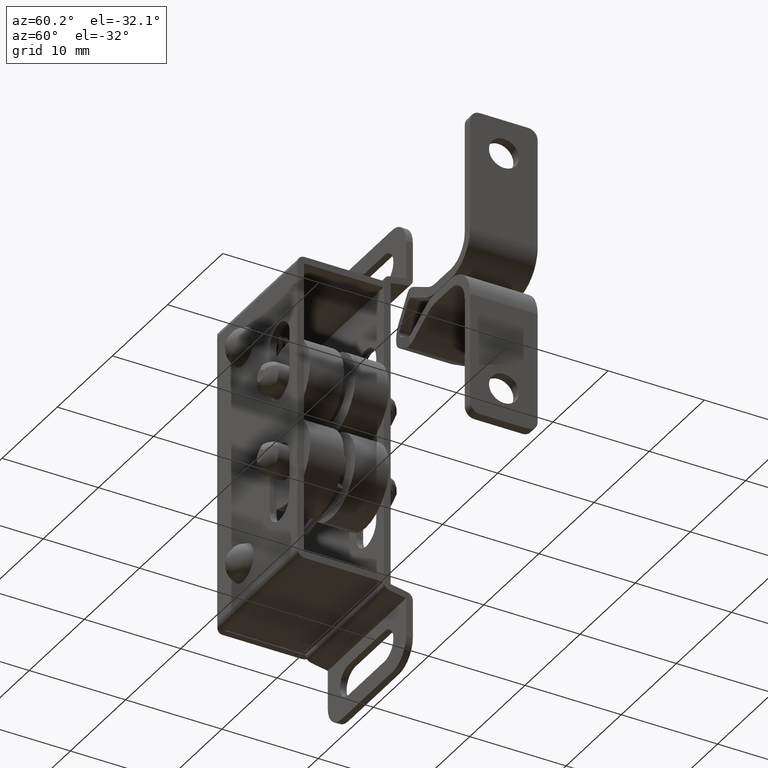
[diagram: clean part render]
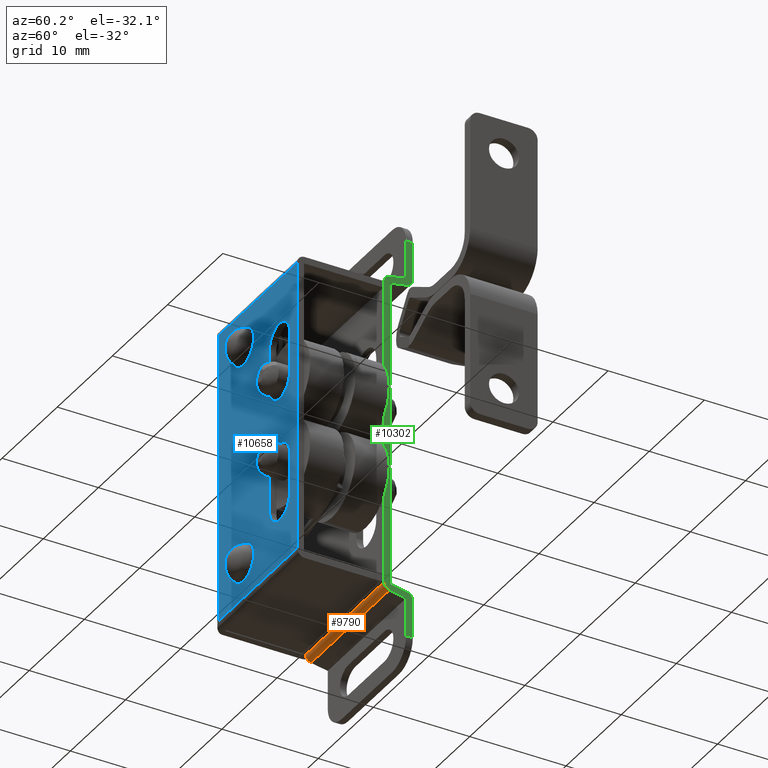
[diagram: same view with three faces highlighted in distinct colors, each labeled with its STEP entity id]
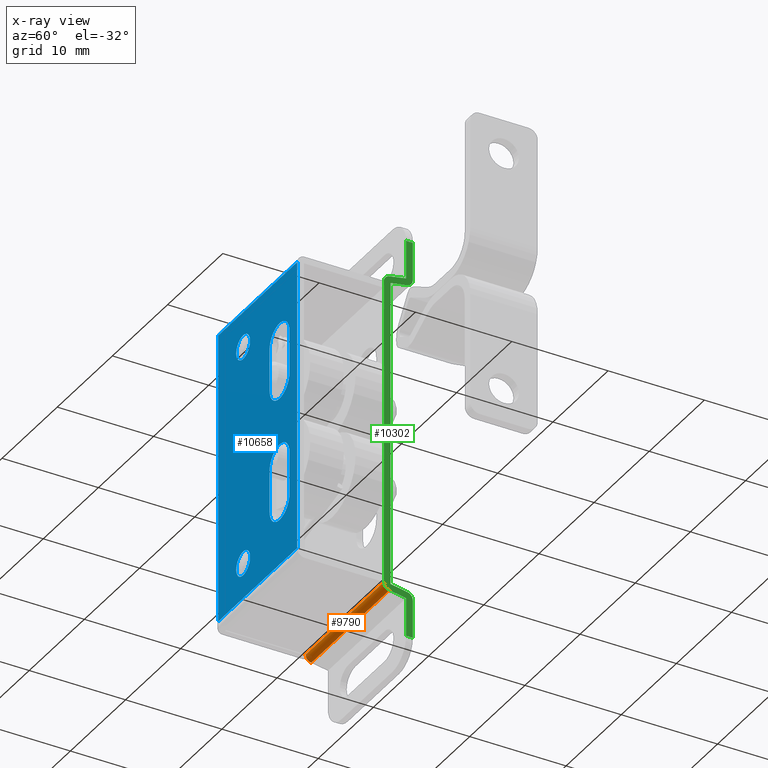
[diagram: x-ray of the same camera — body ghosted, the three highlighted faces saturated]
A machine part, auxiliary view with three faces highlighted in distinct colors.
The next image is the same camera in x-ray (body ghosted, the three faces saturated) — at least one of them is partly hidden behind the body in this view.
Their STEP definitions:

[orange] entity #9790 — the highlighted face is a freeform B-spline surface patch.
#9735=CARTESIAN_POINT('',(-7.405001000000000,-2.403464834763882,-36.692309593846844));
#9736=CARTESIAN_POINT('',(7.513874000000000,-2.403464834763882,-36.692309593846844));
#9737=CARTESIAN_POINT('',(-7.405001000000001,-3.039635583788048,-36.597234885226761));
#9738=CARTESIAN_POINT('',(7.513874000000001,-3.039635583788048,-36.597234885226761));
#9739=CARTESIAN_POINT('',(-7.405001000000000,-2.998572154969899,-35.955311044769921));
#9740=CARTESIAN_POINT('',(7.513874000000000,-2.998572154969899,-35.955311044769921));
#9748=(BOUNDED_SURFACE()B_SPLINE_SURFACE(1,2,((#9735,#9737,#9739),(#9736,#9738,#9740)),.UNSPECIFIED.,.F.,.F.,.U.)B_SPLINE_SURFACE_WITH_KNOTS((2,2),(3,3),(0.0,14.918875000000000),(0.0,0.989286562826298),.UNSPECIFIED.)GEOMETRIC_REPRESENTATION_ITEM()RATIONAL_B_SPLINE_SURFACE(((1.0,0.734231826858821,0.994305418748565),(1.0,0.734231826858821,0.994305418748565)))REPRESENTATION_ITEM('')SURFACE());
#9749=CARTESIAN_POINT('',(-7.050001000000000,-2.424283268661295,-36.688876786562901));
#9750=VERTEX_POINT('',#9749);
#9751=CARTESIAN_POINT('',(-7.049991500000099,-3.0,-36.0));
#9752=VERTEX_POINT('',#9751);
#9753=CARTESIAN_POINT('',(-7.050001000000000,-2.424283268661295,-36.688876786562901));
#9754=CARTESIAN_POINT('',(-7.050000340860760,-2.504223178892334,-36.674505441574730));
#9755=CARTESIAN_POINT('',(-7.049998969733455,-2.644448112540385,-36.622827654888532));
#9756=CARTESIAN_POINT('',(-7.049996527158683,-2.829637589670659,-36.476768495886873));
#9757=CARTESIAN_POINT('',(-7.049993923294700,-2.964741356686654,-36.268986681048567));
#9758=CARTESIAN_POINT('',(-7.049992241427153,-3.000078302353715,-36.091379747095097));
#9759=CARTESIAN_POINT('',(-7.049991500000099,-3.0,-36.0));
#9760=B_SPLINE_CURVE_WITH_KNOTS('',3,(#9753,#9754,#9755,#9756,#9757,#9758,#9759),.UNSPECIFIED.,.F.,.U.,(4,1,1,1,4),(0.000000073786578,0.243657757043663,0.441630109097496,0.700513576719176,0.974629196613938),.UNSPECIFIED.);
#9761=EDGE_CURVE('',#9750,#9752,#9760,.T.);
#9762=ORIENTED_EDGE('',*,*,#9761,.F.);
#9763=CARTESIAN_POINT('',(7.149998999999999,-2.424283268661295,-36.688876786562901));
#9764=VERTEX_POINT('',#9763);
#9765=CARTESIAN_POINT('',(7.149998999999999,-2.424283268661295,-36.688876786562901));
#9766=CARTESIAN_POINT('',(-7.050001000000000,-2.424283268661295,-36.688876786562901));
#9767=QUASI_UNIFORM_CURVE('',1,(#9765,#9766),.UNSPECIFIED.,.F.,.U.);
#9768=EDGE_CURVE('',#9764,#9750,#9767,.T.);
#9769=ORIENTED_EDGE('',*,*,#9768,.F.);
#9770=CARTESIAN_POINT('',(7.149998999999999,-3.0,-35.999998227504150));
#9771=VERTEX_POINT('',#9770);
#9772=CARTESIAN_POINT('',(7.149998999999999,-3.0,-35.999998227504150));
#9773=CARTESIAN_POINT('',(7.149998999999993,-3.000036089385314,-36.071068140282151));
#9774=CARTESIAN_POINT('',(7.149999000000005,-2.982054699415675,-36.187792565839700));
#9775=CARTESIAN_POINT('',(7.149998999999991,-2.906167813083536,-36.366149521409007));
#9776=CARTESIAN_POINT('',(7.149999000000016,-2.792119839612961,-36.512034159089247));
#9777=CARTESIAN_POINT('',(7.149998999999979,-2.620481677597034,-36.632876007510767));
#9778=CARTESIAN_POINT('',(7.149999000000014,-2.494229220205988,-36.676291240018493));
#9779=CARTESIAN_POINT('',(7.149998999999999,-2.424283268661295,-36.688876786562901));
#9780=B_SPLINE_CURVE_WITH_KNOTS('',3,(#9772,#9773,#9774,#9775,#9776,#9777,#9778,#9779),.UNSPECIFIED.,.F.,.U.,(4,1,1,1,1,4),(0.000000073784483,0.213200501175142,0.350258680267044,0.578686153869700,0.761431651671581,0.974630969167074),.UNSPECIFIED.);
#9781=EDGE_CURVE('',#9771,#9764,#9780,.T.);
#9782=ORIENTED_EDGE('',*,*,#9781,.F.);
#9783=CARTESIAN_POINT('',(-7.049991500000099,-3.0,-36.0));
#9784=CARTESIAN_POINT('',(7.149998999999999,-3.0,-35.999998227504150));
#9785=QUASI_UNIFORM_CURVE('',1,(#9783,#9784),.UNSPECIFIED.,.F.,.U.);
#9786=EDGE_CURVE('',#9752,#9771,#9785,.T.);
#9787=ORIENTED_EDGE('',*,*,#9786,.F.);
#9788=EDGE_LOOP('',(#9762,#9769,#9782,#9787));
#9789=FACE_OUTER_BOUND('',#9788,.T.);
#9790=ADVANCED_FACE('',(#9789),#9748,.T.);

[blue] entity #10658 — the highlighted face is a freeform B-spline surface patch.
#7141=CARTESIAN_POINT('',(-1.773863600810570,-12.0,-7.608437051074770));
#7142=VERTEX_POINT('',#7141);
#7148=CARTESIAN_POINT('',(-2.650000829116801,-12.0,-7.250000000000274));
#7149=VERTEX_POINT('',#7148);
#7150=CARTESIAN_POINT('',(-1.773863600810570,-12.0,-7.608437051074770));
#7151=CARTESIAN_POINT('',(-1.831563578122420,-12.000000000000011,-7.551727281615605));
#7152=CARTESIAN_POINT('',(-1.981719364579924,-12.0,-7.430386760151462));
#7153=CARTESIAN_POINT('',(-2.275854989366818,-11.999999999999980,-7.288645211865124));
#7154=CARTESIAN_POINT('',(-2.518523476847275,-12.000000000000060,-7.249929287111401));
#7155=CARTESIAN_POINT('',(-2.650000829116801,-12.0,-7.250000000000274));
#7156=B_SPLINE_CURVE_WITH_KNOTS('',3,(#7150,#7151,#7152,#7153,#7154,#7155),.UNSPECIFIED.,.F.,.U.,(4,1,1,4),(0.000000012919763,0.242715989299494,0.576446543011691,0.970863918501296),.UNSPECIFIED.);
#7157=EDGE_CURVE('',#7142,#7149,#7156,.T.);
#7159=CARTESIAN_POINT('',(-3.900000000000000,-12.0,-8.500000000000000));
#7160=VERTEX_POINT('',#7159);
#7161=CARTESIAN_POINT('',(-2.650000829116801,-12.0,-7.250000000000274));
#7162=CARTESIAN_POINT('',(-2.782956760995053,-12.000000000000011,-7.249920406636777));
#7163=CARTESIAN_POINT('',(-2.997655835389203,-12.0,-7.284608945450910));
#7164=CARTESIAN_POINT('',(-3.317098588564174,-12.000000000000011,-7.426165828220094));
#7165=CARTESIAN_POINT('',(-3.551597124198675,-11.999999999999989,-7.613813376744854));
#7166=CARTESIAN_POINT('',(-3.729063029323265,-12.000000000000011,-7.853237317685921));
#7167=CARTESIAN_POINT('',(-3.860901946381366,-12.0,-8.131904519166778));
#7168=CARTESIAN_POINT('',(-3.900103445103268,-11.999999999999989,-8.356812668725603));
#7169=CARTESIAN_POINT('',(-3.900000000000000,-12.0,-8.500000000000000));
#7170=B_SPLINE_CURVE_WITH_KNOTS('',3,(#7161,#7162,#7163,#7164,#7165,#7166,#7167,#7168,#7169),.UNSPECIFIED.,.F.,.U.,(4,1,1,1,1,1,4),(0.000000019039409,0.398841272212788,0.644292762527722,1.043131384817486,1.288570022076962,1.534021483307610,1.963544213102634),.UNSPECIFIED.);
#7171=EDGE_CURVE('',#7149,#7160,#7170,.T.);
#7173=CARTESIAN_POINT('',(-2.649999170883198,-12.0,-9.749999999999725));
#7174=VERTEX_POINT('',#7173);
#7175=CARTESIAN_POINT('',(-3.900000000000000,-12.0,-8.500000000000000));
#7176=CARTESIAN_POINT('',(-3.900079475116912,-11.999999999999989,-8.632956033226774));
#7177=CARTESIAN_POINT('',(-3.865395309677990,-11.999999999999989,-8.847658530415277));
#7178=CARTESIAN_POINT('',(-3.744610641691479,-12.000000000000011,-9.120087023848615));
#7179=CARTESIAN_POINT('',(-3.573076406317258,-12.000000000000020,-9.363792438855775));
#7180=CARTESIAN_POINT('',(-3.327394652861770,-11.999999999999940,-9.570478900525908));
#7181=CARTESIAN_POINT('',(-2.997678178117727,-12.000000000000091,-9.716599828960154));
#7182=CARTESIAN_POINT('',(-2.772719483500235,-11.999999999999959,-9.750049805187210));
#7183=CARTESIAN_POINT('',(-2.649999170883198,-12.0,-9.749999999999725));
#7184=B_SPLINE_CURVE_WITH_KNOTS('',3,(#7175,#7176,#7177,#7178,#7179,#7180,#7181,#7182,#7183),.UNSPECIFIED.,.F.,.U.,(4,1,1,1,1,1,4),(0.000000017901356,0.398841461105192,0.644293068156780,0.889732975771184,1.288570635059530,1.595385085354591,1.963545147733842),.UNSPECIFIED.);
#7185=EDGE_CURVE('',#7160,#7174,#7184,.T.);
#7187=CARTESIAN_POINT('',(-1.758436757976094,-12.0,-9.376136692297987));
#7188=VERTEX_POINT('',#7187);
#7189=CARTESIAN_POINT('',(-2.649999170883198,-12.0,-9.749999999999725));
#7190=CARTESIAN_POINT('',(-2.515564177310376,-11.999999999999989,-9.750084235080742));
#7191=CARTESIAN_POINT('',(-2.298480894296154,-12.000000000000030,-9.714610781084017));
#7192=CARTESIAN_POINT('',(-1.995110890310343,-11.999999999999950,-9.578449799878005));
#7193=CARTESIAN_POINT('',(-1.838136441372481,-12.000000000000060,-9.457290230359902));
#7194=CARTESIAN_POINT('',(-1.758436757976094,-12.0,-9.376136692297987));
#7195=B_SPLINE_CURVE_WITH_KNOTS('',3,(#7189,#7190,#7191,#7192,#7193,#7194),.UNSPECIFIED.,.F.,.U.,(4,1,1,4),(7.947974E-009,0.403276808290107,0.651446641998787,0.992680777873373),.UNSPECIFIED.);
#7196=EDGE_CURVE('',#7174,#7188,#7195,.T.);
#7282=CARTESIAN_POINT('',(-1.400000000000000,-12.0,-8.500000000000000));
#7283=VERTEX_POINT('',#7282);
#7284=CARTESIAN_POINT('',(-1.758436757976094,-12.0,-9.376136692297987));
#7285=CARTESIAN_POINT('',(-1.680437693936262,-12.000000000000011,-9.296815599915121));
#7286=CARTESIAN_POINT('',(-1.564223330445895,-11.999999999999989,-9.141654699312651));
#7287=CARTESIAN_POINT('',(-1.433828788758458,-12.000000000000030,-8.843799162698323));
#7288=CARTESIAN_POINT('',(-1.399929795402831,-11.999999999999959,-8.631479080816073));
#7289=CARTESIAN_POINT('',(-1.400000000000000,-12.0,-8.500000000000000));
#7290=B_SPLINE_CURVE_WITH_KNOTS('',3,(#7284,#7285,#7286,#7287,#7288,#7289),.UNSPECIFIED.,.F.,.U.,(4,1,1,4),(0.000000012900161,0.333737661069604,0.576446148419718,0.970863253915326),.UNSPECIFIED.);
#7291=EDGE_CURVE('',#7188,#7283,#7290,.T.);
#7293=CARTESIAN_POINT('',(-1.400000000000000,-12.0,-8.500000000000000));
#7294=CARTESIAN_POINT('',(-1.399848335679102,-12.000000000000020,-8.344868977520390));
#7295=CARTESIAN_POINT('',(-1.440952269577499,-11.999999999999980,-8.127839537742414));
#7296=CARTESIAN_POINT('',(-1.584318256083940,-12.000000000000030,-7.828591631055107));
#7297=CARTESIAN_POINT('',(-1.692706108071324,-11.999999999999970,-7.688135846835227));
#7298=CARTESIAN_POINT('',(-1.773863600810570,-12.0,-7.608437051074770));
#7299=B_SPLINE_CURVE_WITH_KNOTS('',3,(#7293,#7294,#7295,#7296,#7297,#7298),.UNSPECIFIED.,.F.,.U.,(4,1,1,4),(7.927597E-009,0.465319611016237,0.651447080523188,0.992681446093854),.UNSPECIFIED.);
#7300=EDGE_CURVE('',#7283,#7142,#7299,.T.);
#7541=CARTESIAN_POINT('',(-1.773863600810570,-12.0,-30.608437051074770));
#7542=VERTEX_POINT('',#7541);
#7548=CARTESIAN_POINT('',(-2.650000829116801,-12.0,-30.250000000000270));
#7549=VERTEX_POINT('',#7548);
#7550=CARTESIAN_POINT('',(-1.773863600810570,-12.0,-30.608437051074770));
#7551=CARTESIAN_POINT('',(-1.853190176863073,-12.000000000000011,-30.530443598388459));
#7552=CARTESIAN_POINT('',(-2.024666890963750,-11.999999999999980,-30.401971368206521));
#7553=CARTESIAN_POINT('',(-2.326403444215437,-12.000000000000011,-30.278534020879668));
#7554=CARTESIAN_POINT('',(-2.538754062856949,-12.000000000000011,-30.249966694718509));
#7555=CARTESIAN_POINT('',(-2.650000829116801,-12.0,-30.250000000000270));
#7556=B_SPLINE_CURVE_WITH_KNOTS('',3,(#7550,#7551,#7552,#7553,#7554,#7555),.UNSPECIFIED.,.F.,.U.,(4,1,1,4),(0.000000012919711,0.333737889520006,0.637126041879073,0.970863918501298),.UNSPECIFIED.);
#7557=EDGE_CURVE('',#7542,#7549,#7556,.T.);
#7559=CARTESIAN_POINT('',(-3.900000000000000,-12.0,-31.500000000000000));
#7560=VERTEX_POINT('',#7559);
#7561=CARTESIAN_POINT('',(-2.650000829116801,-12.0,-30.250000000000270));
#7562=CARTESIAN_POINT('',(-2.782956445971239,-12.0,-30.249920333265148));
#7563=CARTESIAN_POINT('',(-2.997656576701563,-12.000000000000011,-30.284609270468419));
#7564=CARTESIAN_POINT('',(-3.317097251441971,-11.999999999999989,-30.426165339993069));
#7565=CARTESIAN_POINT('',(-3.551598922129692,-12.000000000000011,-30.613814017159491));
#7566=CARTESIAN_POINT('',(-3.729061539293295,-12.0,-30.853236472858899));
#7567=CARTESIAN_POINT('',(-3.860903424714570,-11.999999999999989,-31.131905651782549));
#7568=CARTESIAN_POINT('',(-3.900102176303965,-12.0,-31.356812134788878));
#7569=CARTESIAN_POINT('',(-3.900000000000000,-12.0,-31.500000000000000));
#7570=B_SPLINE_CURVE_WITH_KNOTS('',3,(#7561,#7562,#7563,#7564,#7565,#7566,#7567,#7568,#7569),.UNSPECIFIED.,.F.,.U.,(4,1,1,1,1,1,4),(0.000000019040471,0.398841272213467,0.644292762528190,1.043131384817739,1.288570022077028,1.534021483307579,1.963544213102633),.UNSPECIFIED.);
#7571=EDGE_CURVE('',#7549,#7560,#7570,.T.);
#7573=CARTESIAN_POINT('',(-2.649999170883199,-12.0,-32.749999999999723));
#7574=VERTEX_POINT('',#7573);
#7575=CARTESIAN_POINT('',(-3.900000000000000,-12.0,-31.500000000000000));
#7576=CARTESIAN_POINT('',(-3.900035937731726,-12.000000000000011,-31.612494239372221));
#7577=CARTESIAN_POINT('',(-3.876366862560398,-12.0,-31.786323443217579));
#7578=CARTESIAN_POINT('',(-3.789992571957913,-12.000000000000011,-32.027697310270732));
#7579=CARTESIAN_POINT('',(-3.673511331323448,-11.999999999999959,-32.233347929244950));
#7580=CARTESIAN_POINT('',(-3.503115407127429,-12.000000000000060,-32.426036230344373));
#7581=CARTESIAN_POINT('',(-3.263772996538962,-12.000000000000060,-32.603598495719098));
#7582=CARTESIAN_POINT('',(-2.977253036818928,-11.999999999999760,-32.722269312109653));
#7583=CARTESIAN_POINT('',(-2.752261673171784,-12.000000000000240,-32.750016789413628));
#7584=CARTESIAN_POINT('',(-2.649999170883199,-12.0,-32.749999999999723));
#7585=B_SPLINE_CURVE_WITH_KNOTS('',3,(#7575,#7576,#7577,#7578,#7579,#7580,#7581,#7582,#7583,#7584),.UNSPECIFIED.,.F.,.U.,(4,1,1,1,1,1,1,4),(0.000000017898332,0.337478418840310,0.521568113294600,0.767014379033047,1.043131879063607,1.288570635058830,1.656747095445904,1.963545147733884),.UNSPECIFIED.);
#7586=EDGE_CURVE('',#7560,#7574,#7585,.T.);
#7588=CARTESIAN_POINT('',(-1.758436757976094,-12.0,-32.376136692297990));
#7589=VERTEX_POINT('',#7588);
#7590=CARTESIAN_POINT('',(-2.649999170883199,-12.0,-32.749999999999723));
#7591=CARTESIAN_POINT('',(-2.556935507897787,-11.999999999999989,-32.750017275627179));
#7592=CARTESIAN_POINT('',(-2.381165537788515,-12.000000000000011,-32.730272885182941));
#7593=CARTESIAN_POINT('',(-2.065776654340118,-12.000000000000020,-32.624884352557530));
#7594=CARTESIAN_POINT('',(-1.867061659797558,-11.999999999999970,-32.486887653921848));
#7595=CARTESIAN_POINT('',(-1.758436757976094,-12.0,-32.376136692297990));
#7596=B_SPLINE_CURVE_WITH_KNOTS('',3,(#7590,#7591,#7592,#7593,#7594,#7595),.UNSPECIFIED.,.F.,.U.,(4,1,1,4),(7.948064E-009,0.279191489992953,0.527361488023393,0.992680777873370),.UNSPECIFIED.);
#7597=EDGE_CURVE('',#7574,#7589,#7596,.T.);
#7681=CARTESIAN_POINT('',(-1.400000000000000,-12.0,-31.500000000000000));
#7682=VERTEX_POINT('',#7681);
#7683=CARTESIAN_POINT('',(-1.758436757976094,-12.0,-32.376136692297990));
#7684=CARTESIAN_POINT('',(-1.680436613146193,-12.0,-32.296815845534233));
#7685=CARTESIAN_POINT('',(-1.564223600254225,-11.999999999999989,-32.141654620066213));
#7686=CARTESIAN_POINT('',(-1.433835953978591,-12.000000000000020,-31.843798259415109));
#7687=CARTESIAN_POINT('',(-1.399920575356371,-11.999999999999980,-31.631480251673871));
#7688=CARTESIAN_POINT('',(-1.400000000000000,-12.0,-31.500000000000000));
#7689=B_SPLINE_CURVE_WITH_KNOTS('',3,(#7683,#7684,#7685,#7686,#7687,#7688),.UNSPECIFIED.,.F.,.U.,(4,1,1,4),(0.000000012900144,0.333737661069851,0.576446148419815,0.970863253915329),.UNSPECIFIED.);
#7690=EDGE_CURVE('',#7589,#7682,#7689,.T.);
#7692=CARTESIAN_POINT('',(-1.400000000000000,-12.0,-31.500000000000000));
#7693=CARTESIAN_POINT('',(-1.399850363912752,-11.999999999999989,-31.344870903633581));
#7694=CARTESIAN_POINT('',(-1.444860874987946,-12.000000000000020,-31.107162779990372));
#7695=CARTESIAN_POINT('',(-1.595944500380337,-11.999999999999980,-30.810935522078520));
#7696=CARTESIAN_POINT('',(-1.707473744850584,-12.000000000000011,-30.673653888099661));
#7697=CARTESIAN_POINT('',(-1.773863600810570,-12.0,-30.608437051074770));
#7698=B_SPLINE_CURVE_WITH_KNOTS('',3,(#7692,#7693,#7694,#7695,#7696,#7697),.UNSPECIFIED.,.F.,.U.,(4,1,1,4),(7.928524E-009,0.465319611016589,0.713489776106254,0.992681446093841),.UNSPECIFIED.);
#7699=EDGE_CURVE('',#7682,#7542,#7698,.T.);
#7742=CARTESIAN_POINT('',(-7.150001000000000,-12.0,-4.800000000000000));
#7743=VERTEX_POINT('',#7742);
#7773=CARTESIAN_POINT('',(7.149998999999999,-12.0,-4.800000000000000));
#7774=VERTEX_POINT('',#7773);
#7775=CARTESIAN_POINT('',(7.149998999999999,-12.0,-4.800000000000000));
#7776=CARTESIAN_POINT('',(-7.150001000000000,-12.0,-4.800000000000000));
#7777=QUASI_UNIFORM_CURVE('',1,(#7775,#7776),.UNSPECIFIED.,.F.,.U.);
#7778=EDGE_CURVE('',#7774,#7743,#7777,.T.);
#7837=CARTESIAN_POINT('',(7.149998999999999,-12.0,-35.200000000000003));
#7838=VERTEX_POINT('',#7837);
#7846=CARTESIAN_POINT('',(-7.150001000000000,-12.0,-35.200000000000003));
#7847=VERTEX_POINT('',#7846);
#7848=CARTESIAN_POINT('',(-7.150001000000000,-12.0,-35.200000000000003));
#7849=CARTESIAN_POINT('',(7.149998999999999,-12.0,-35.200000000000003));
#7850=QUASI_UNIFORM_CURVE('',1,(#7848,#7849),.UNSPECIFIED.,.F.,.U.);
#7851=EDGE_CURVE('',#7847,#7838,#7850,.T.);
#8183=CARTESIAN_POINT('',(5.749998000000000,-12.0,-15.754242637736750));
#8184=VERTEX_POINT('',#8183);
#8190=CARTESIAN_POINT('',(5.749998000000000,-12.0,-11.345756362263240));
#8191=VERTEX_POINT('',#8190);
#8192=CARTESIAN_POINT('',(5.749998000000000,-12.0,-15.754242637736750));
#8193=CARTESIAN_POINT('',(5.749998000000000,-12.0,-11.345756362263240));
#8194=QUASI_UNIFORM_CURVE('',1,(#8192,#8193),.UNSPECIFIED.,.F.,.U.);
#8195=EDGE_CURVE('',#8184,#8191,#8194,.T.);
#8255=CARTESIAN_POINT('',(3.947880959622001,-12.0,-9.550000250849127));
#8256=VERTEX_POINT('',#8255);
#8257=CARTESIAN_POINT('',(5.749998000000000,-12.0,-11.345756362263240));
#8258=CARTESIAN_POINT('',(5.749670244799378,-12.0,-11.139716590192350));
#8259=CARTESIAN_POINT('',(5.700321652183813,-12.000000000000030,-10.860348670414400));
#8260=CARTESIAN_POINT('',(5.548534692537960,-11.999999999999980,-10.508354432587700));
#8261=CARTESIAN_POINT('',(5.400868184932342,-12.000000000000011,-10.269740264615720));
#8262=CARTESIAN_POINT('',(5.155808609157690,-11.999999999999959,-9.993531456381749));
#8263=CARTESIAN_POINT('',(4.866637430004766,-12.000000000000080,-9.785255913605623));
#8264=CARTESIAN_POINT('',(4.448164799857879,-12.000000000000060,-9.600513491899832));
#8265=CARTESIAN_POINT('',(4.153921255269936,-11.999999999999901,-9.549608255637747));
#8266=CARTESIAN_POINT('',(3.947880959622001,-12.0,-9.550000250849127));
#8267=B_SPLINE_CURVE_WITH_KNOTS('',3,(#8257,#8258,#8259,#8260,#8261,#8262,#8263,#8264,#8265,#8266),.UNSPECIFIED.,.F.,.U.,(4,1,1,1,1,1,1,4),(0.000000059123574,0.618040184563632,0.838771877610776,1.147793396208711,1.456800323694249,1.942413259800364,2.207291084473840,2.825330488498266),.UNSPECIFIED.);
#8268=EDGE_CURVE('',#8191,#8256,#8267,.T.);
#8270=CARTESIAN_POINT('',(2.150003000000000,-12.0,-11.349998999999981));
#8271=VERTEX_POINT('',#8270);
#8272=CARTESIAN_POINT('',(3.947880959622001,-12.0,-9.550000250849127));
#8273=CARTESIAN_POINT('',(3.763930814674832,-12.000000000000020,-9.550132174778762));
#8274=CARTESIAN_POINT('',(3.484451785378094,-11.999999999999959,-9.593783530552487));
#8275=CARTESIAN_POINT('',(3.129095971949953,-12.000000000000050,-9.738838340484959));
#8276=CARTESIAN_POINT('',(2.871451612656343,-11.999999999999950,-9.897860810100896));
#8277=CARTESIAN_POINT('',(2.600497029693734,-12.000000000000060,-10.137705877527830));
#8278=CARTESIAN_POINT('',(2.403411416828224,-11.999999999999931,-10.407149473071740));
#8279=CARTESIAN_POINT('',(2.252247590946280,-12.000000000000050,-10.727081241496510));
#8280=CARTESIAN_POINT('',(2.169622714549909,-11.999999999999970,-11.018908999373579));
#8281=CARTESIAN_POINT('',(2.149997575960805,-12.000000000000011,-11.246995307971790));
#8282=CARTESIAN_POINT('',(2.150003000000000,-12.0,-11.349998999999981));
#8283=B_SPLINE_CURVE_WITH_KNOTS('',3,(#8272,#8273,#8274,#8275,#8276,#8277,#8278,#8279,#8280,#8281,#8282),.UNSPECIFIED.,.F.,.U.,(4,1,1,1,1,1,1,1,4),(0.000000059120850,0.551818016286363,0.838771450075751,1.147792811157846,1.456799581158528,1.920335616417419,2.141069945359729,2.516315479431486,2.825329048397229),.UNSPECIFIED.);
#8284=EDGE_CURVE('',#8256,#8271,#8283,.T.);
#8307=CARTESIAN_POINT('',(2.150003000000000,-12.000000000000460,-15.750000000000000));
#8308=VERTEX_POINT('',#8307);
#8309=CARTESIAN_POINT('',(2.150003000000000,-12.0,-11.349998999999981));
#8310=CARTESIAN_POINT('',(2.150003000000000,-12.000000000000460,-15.750000000000000));
#8311=QUASI_UNIFORM_CURVE('',1,(#8309,#8310),.UNSPECIFIED.,.F.,.U.);
#8312=EDGE_CURVE('',#8271,#8308,#8311,.T.);
#8368=CARTESIAN_POINT('',(3.947882399694977,-12.0,-17.549998750848001));
#8369=VERTEX_POINT('',#8368);
#8370=CARTESIAN_POINT('',(2.150003000000000,-12.000000000000460,-15.750000000000000));
#8371=CARTESIAN_POINT('',(2.149979829928829,-12.000000000000460,-15.882435784218130));
#8372=CARTESIAN_POINT('',(2.175296521670493,-12.000000000000369,-16.110507390203001));
#8373=CARTESIAN_POINT('',(2.288851285666884,-12.000000000000391,-16.477147819663639));
#8374=CARTESIAN_POINT('',(2.458725162482789,-12.000000000000330,-16.781630668852891));
#8375=CARTESIAN_POINT('',(2.706219769570180,-12.000000000000171,-17.065270895936550));
#8376=CARTESIAN_POINT('',(3.007824586655671,-12.000000000000171,-17.304047447076339));
#8377=CARTESIAN_POINT('',(3.432943375804575,-12.000000000000099,-17.499189821119931));
#8378=CARTESIAN_POINT('',(3.771292832589077,-12.000000000000060,-17.549862387461310));
#8379=CARTESIAN_POINT('',(3.947882399694977,-12.0,-17.549998750848001));
#8380=B_SPLINE_CURVE_WITH_KNOTS('',3,(#8370,#8371,#8372,#8373,#8374,#8375,#8376,#8377,#8378,#8379),.UNSPECIFIED.,.F.,.U.,(4,1,1,1,1,1,1,4),(0.000000059121146,0.397304091772344,0.684259417856050,1.147793396208071,1.434720139257297,1.809968446232705,2.295582501647633,2.825330488498274),.UNSPECIFIED.);
#8381=EDGE_CURVE('',#8308,#8369,#8380,.T.);
#8383=CARTESIAN_POINT('',(3.947882399694977,-12.0,-17.549998750848001));
#8384=CARTESIAN_POINT('',(4.087678791226854,-11.999999999999980,-17.550195211588090));
#8385=CARTESIAN_POINT('',(4.352570024106401,-11.999999999999950,-17.519452501682458));
#8386=CARTESIAN_POINT('',(4.764651997440803,-11.999999999999959,-17.375585002767039));
#8387=CARTESIAN_POINT('',(5.112425084328804,-11.999999999999810,-17.147083416606161));
#8388=CARTESIAN_POINT('',(5.369498776796768,-12.0,-16.871253485259238));
#8389=CARTESIAN_POINT('',(5.555125583797985,-11.999999999999851,-16.587151253097652));
#8390=CARTESIAN_POINT('',(5.706026287418883,-12.0,-16.224999722865199));
#8391=CARTESIAN_POINT('',(5.749664228497259,-11.999999999999970,-15.923470201175610));
#8392=CARTESIAN_POINT('',(5.749998000000000,-12.0,-15.754242637736750));
#8393=B_SPLINE_CURVE_WITH_KNOTS('',3,(#8383,#8384,#8385,#8386,#8387,#8388,#8389,#8390,#8391,#8392),.UNSPECIFIED.,.F.,.U.,(4,1,1,1,1,1,1,4),(0.000000059121515,0.419383340002331,0.794625917825353,1.302302666897636,1.655453298301464,1.920335616417509,2.317657984879047,2.825329048397213),.UNSPECIFIED.);
#8394=EDGE_CURVE('',#8369,#8184,#8393,.T.);
#8638=CARTESIAN_POINT('',(5.749998000000000,-12.0,-28.654244637736749));
#8639=VERTEX_POINT('',#8638);
#8645=CARTESIAN_POINT('',(5.749998000000000,-12.000000000000460,-24.245757362263252));
#8646=VERTEX_POINT('',#8645);
#8647=CARTESIAN_POINT('',(5.749998000000000,-12.000000000000460,-24.245757362263252));
#8648=CARTESIAN_POINT('',(5.749998000000000,-12.0,-28.654244637736749));
#8649=QUASI_UNIFORM_CURVE('',1,(#8647,#8648),.UNSPECIFIED.,.F.,.U.);
#8650=EDGE_CURVE('',#8646,#8639,#8649,.T.);
#8715=CARTESIAN_POINT('',(2.150003000000000,-12.0,-28.650002000000001));
#8716=VERTEX_POINT('',#8715);
#8722=CARTESIAN_POINT('',(3.947882399694978,-12.0,-30.450000750848002));
#8723=VERTEX_POINT('',#8722);
#8724=CARTESIAN_POINT('',(2.150003000000000,-12.0,-28.650002000000001));
#8725=CARTESIAN_POINT('',(2.149996907295000,-12.0,-28.767719457713369));
#8726=CARTESIAN_POINT('',(2.177493593224528,-12.000000000000011,-29.047314477725202));
#8727=CARTESIAN_POINT('',(2.329489655984524,-12.0,-29.489700759612639));
#8728=CARTESIAN_POINT('',(2.597399158312987,-12.000000000000020,-29.865538453106989));
#8729=CARTESIAN_POINT('',(2.912257512386368,-12.000000000000020,-30.134019370147250));
#8730=CARTESIAN_POINT('',(3.182292378389537,-11.999999999999931,-30.287283670299750));
#8731=CARTESIAN_POINT('',(3.528576418746424,-12.000000000000050,-30.413958490195220));
#8732=CARTESIAN_POINT('',(3.778650501305384,-11.999999999999989,-30.449865986343220));
#8733=CARTESIAN_POINT('',(3.947882399694978,-12.0,-30.450000750848002));
#8734=B_SPLINE_CURVE_WITH_KNOTS('',3,(#8724,#8725,#8726,#8727,#8728,#8729,#8730,#8731,#8732,#8733),.UNSPECIFIED.,.F.,.U.,(4,1,1,1,1,1,1,4),(0.000000059124686,0.353159742156555,0.838771877610912,1.390610219639224,1.721678999414227,2.074850996598717,2.317659166220601,2.825330488498271),.UNSPECIFIED.);
#8735=EDGE_CURVE('',#8716,#8723,#8734,.T.);
#8737=CARTESIAN_POINT('',(3.947882399694978,-12.0,-30.450000750848002));
#8738=CARTESIAN_POINT('',(4.117114640605317,-12.000000000000020,-30.450264659082201));
#8739=CARTESIAN_POINT('',(4.367271754194368,-11.999999999999980,-30.414946442186761));
#8740=CARTESIAN_POINT('',(4.713850124868943,-12.000000000000030,-30.289083124626838));
#8741=CARTESIAN_POINT('',(5.022917346921485,-11.999999999999980,-30.114692036294532));
#8742=CARTESIAN_POINT('',(5.291174373183319,-11.999999999999940,-29.869381766186379));
#8743=CARTESIAN_POINT('',(5.507806076187875,-12.000000000000080,-29.570811681602098));
#8744=CARTESIAN_POINT('',(5.691238587051195,-11.999999999999931,-29.191127725739818));
#8745=CARTESIAN_POINT('',(5.749666349195303,-12.000000000000020,-28.860278862029151));
#8746=CARTESIAN_POINT('',(5.749998000000000,-12.0,-28.654244637736749));
#8747=B_SPLINE_CURVE_WITH_KNOTS('',3,(#8737,#8738,#8739,#8740,#8741,#8742,#8743,#8744,#8745,#8746),.UNSPECIFIED.,.F.,.U.,(4,1,1,1,1,1,1,4),(0.000000059123265,0.507672252911521,0.750479392508444,1.103651916894115,1.567168273454924,1.832047286447955,2.207289959392399,2.825329048397207),.UNSPECIFIED.);
#8748=EDGE_CURVE('',#8723,#8639,#8747,.T.);
#8761=CARTESIAN_POINT('',(2.149999000000000,-12.0,-24.250000000000000));
#8762=VERTEX_POINT('',#8761);
#8768=CARTESIAN_POINT('',(2.150003000000000,-12.0,-28.650002000000001));
#8769=CARTESIAN_POINT('',(2.149999000000000,-12.0,-24.250000000000000));
#8770=QUASI_UNIFORM_CURVE('',1,(#8768,#8769),.UNSPECIFIED.,.F.,.U.);
#8771=EDGE_CURVE('',#8716,#8762,#8770,.T.);
#8829=CARTESIAN_POINT('',(3.947878960793736,-12.000000000000229,-22.450001250847759));
#8830=VERTEX_POINT('',#8829);
#8831=CARTESIAN_POINT('',(5.749998000000000,-12.000000000000460,-24.245757362263252));
#8832=CARTESIAN_POINT('',(5.749673857022409,-12.000000000000499,-24.024994863567930));
#8833=CARTESIAN_POINT('',(5.689791758019511,-12.000000000000419,-23.708905388983460));
#8834=CARTESIAN_POINT('',(5.500326780586616,-12.000000000000490,-23.316782281967591));
#8835=CARTESIAN_POINT('',(5.283255078892189,-12.000000000000290,-23.017583596419989));
#8836=CARTESIAN_POINT('',(4.941925115785479,-12.000000000000391,-22.720433198587870));
#8837=CARTESIAN_POINT('',(4.477661889163438,-12.000000000000350,-22.501742614630221));
#8838=CARTESIAN_POINT('',(4.124466690667269,-12.000000000000069,-22.449722200692211));
#8839=CARTESIAN_POINT('',(3.947878960793736,-12.000000000000229,-22.450001250847759));
#8840=B_SPLINE_CURVE_WITH_KNOTS('',3,(#8831,#8832,#8833,#8834,#8835,#8836,#8837,#8838,#8839),.UNSPECIFIED.,.F.,.U.,(4,1,1,1,1,1,4),(0.000000059139142,0.662186376425372,0.949140314031284,1.302303858299537,1.765823272502082,2.295583431646043,2.825331633108400),.UNSPECIFIED.);
#8841=EDGE_CURVE('',#8646,#8830,#8840,.T.);
#8843=CARTESIAN_POINT('',(3.947878960793736,-12.000000000000229,-22.450001250847759));
#8844=CARTESIAN_POINT('',(3.727116604274442,-12.000000000000160,-22.450071331716519));
#8845=CARTESIAN_POINT('',(3.425662498027408,-12.000000000000250,-22.506798520031261));
#8846=CARTESIAN_POINT('',(3.044746068897427,-12.000000000000060,-22.684577114701550));
#8847=CARTESIAN_POINT('',(2.794922421632517,-12.000000000000160,-22.856222608825458));
#8848=CARTESIAN_POINT('',(2.575752325512120,-11.999999999999989,-23.075678755346011));
#8849=CARTESIAN_POINT('',(2.372719865447947,-12.000000000000069,-23.356769189150469));
#8850=CARTESIAN_POINT('',(2.199117978461666,-12.000000000000060,-23.742364296001060));
#8851=CARTESIAN_POINT('',(2.149925807272600,-12.0,-24.073409579469502));
#8852=CARTESIAN_POINT('',(2.149999000000000,-12.0,-24.250000000000000));
#8853=B_SPLINE_CURVE_WITH_KNOTS('',3,(#8843,#8844,#8845,#8846,#8847,#8848,#8849,#8850,#8851,#8852),.UNSPECIFIED.,.F.,.U.,(4,1,1,1,1,1,1,4),(0.000000059121967,0.662186038335349,0.904994224332550,1.258162111597033,1.567168907054025,1.832048027127230,2.295582259638616,2.825330190642392),.UNSPECIFIED.);
#8854=EDGE_CURVE('',#8830,#8762,#8853,.T.);
#9811=CARTESIAN_POINT('',(-7.150001000000000,-12.0,-4.800000000000000));
#9812=CARTESIAN_POINT('',(-7.150001000000000,-12.0,-35.200000000000003));
#9813=QUASI_UNIFORM_CURVE('',1,(#9811,#9812),.UNSPECIFIED.,.F.,.U.);
#9814=EDGE_CURVE('',#7743,#7847,#9813,.T.);
#10095=CARTESIAN_POINT('',(7.149998999999999,-12.0,-4.800000000000000));
#10096=CARTESIAN_POINT('',(7.149998999999999,-12.0,-35.200000000000003));
#10097=QUASI_UNIFORM_CURVE('',1,(#10095,#10096),.UNSPECIFIED.,.F.,.U.);
#10098=EDGE_CURVE('',#7774,#7838,#10097,.T.);
#10615=CARTESIAN_POINT('',(-7.864286106521996,-12.0,-36.718480797199263));
#10616=CARTESIAN_POINT('',(-7.864286106521996,-12.0,-3.281519202800755));
#10617=CARTESIAN_POINT('',(7.864284362225924,-12.0,-36.718480797199263));
#10618=CARTESIAN_POINT('',(7.864284362225924,-12.0,-3.281519202800755));
#10619=B_SPLINE_SURFACE_WITH_KNOTS('',1,1,((#10615,#10617),(#10616,#10618)),.UNSPECIFIED.,.F.,.F.,.U.,(2,2),(2,2),(0.0,33.436961594398497),(0.0,15.728570468747920),.UNSPECIFIED.);
#10620=ORIENTED_EDGE('',*,*,#9814,.T.);
#10621=ORIENTED_EDGE('',*,*,#7851,.T.);
#10622=ORIENTED_EDGE('',*,*,#10098,.F.);
#10623=ORIENTED_EDGE('',*,*,#7778,.T.);
#10624=EDGE_LOOP('',(#10620,#10621,#10622,#10623));
#10625=FACE_OUTER_BOUND('',#10624,.T.);
#10626=ORIENTED_EDGE('',*,*,#8195,.F.);
#10627=ORIENTED_EDGE('',*,*,#8394,.F.);
#10628=ORIENTED_EDGE('',*,*,#8381,.F.);
#10629=ORIENTED_EDGE('',*,*,#8312,.F.);
#10630=ORIENTED_EDGE('',*,*,#8284,.F.);
#10631=ORIENTED_EDGE('',*,*,#8268,.F.);
#10632=EDGE_LOOP('',(#10626,#10627,#10628,#10629,#10630,#10631));
#10633=FACE_BOUND('',#10632,.T.);
#10634=ORIENTED_EDGE('',*,*,#8650,.T.);
#10635=ORIENTED_EDGE('',*,*,#8748,.F.);
#10636=ORIENTED_EDGE('',*,*,#8735,.F.);
#10637=ORIENTED_EDGE('',*,*,#8771,.T.);
#10638=ORIENTED_EDGE('',*,*,#8854,.F.);
#10639=ORIENTED_EDGE('',*,*,#8841,.F.);
#10640=EDGE_LOOP('',(#10634,#10635,#10636,#10637,#10638,#10639));
#10641=FACE_BOUND('',#10640,.T.);
#10642=ORIENTED_EDGE('',*,*,#7571,.F.);
#10643=ORIENTED_EDGE('',*,*,#7557,.F.);
#10644=ORIENTED_EDGE('',*,*,#7699,.F.);
#10645=ORIENTED_EDGE('',*,*,#7690,.F.);
#10646=ORIENTED_EDGE('',*,*,#7597,.F.);
#10647=ORIENTED_EDGE('',*,*,#7586,.F.);
#10648=EDGE_LOOP('',(#10642,#10643,#10644,#10645,#10646,#10647));
#10649=FACE_BOUND('',#10648,.T.);
#10650=ORIENTED_EDGE('',*,*,#7171,.F.);
#10651=ORIENTED_EDGE('',*,*,#7157,.F.);
#10652=ORIENTED_EDGE('',*,*,#7300,.F.);
#10653=ORIENTED_EDGE('',*,*,#7291,.F.);
#10654=ORIENTED_EDGE('',*,*,#7196,.F.);
#10655=ORIENTED_EDGE('',*,*,#7185,.F.);
#10656=EDGE_LOOP('',(#10650,#10651,#10652,#10653,#10654,#10655));
#10657=FACE_BOUND('',#10656,.T.);
#10658=ADVANCED_FACE('',(#10625,#10633,#10641,#10649,#10657),#10619,.F.);

[green] entity #10302 — the highlighted face is a freeform B-spline surface patch.
#9332=CARTESIAN_POINT('',(7.149998999999999,0.0,-41.0));
#9333=VERTEX_POINT('',#9332);
#9348=CARTESIAN_POINT('',(7.149998999999999,-0.699997000000000,-41.0));
#9349=VERTEX_POINT('',#9348);
#9350=CARTESIAN_POINT('',(7.149998999999999,-0.699997000000000,-41.0));
#9351=CARTESIAN_POINT('',(7.149998999999999,0.0,-41.0));
#9352=QUASI_UNIFORM_CURVE('',1,(#9350,#9351),.UNSPECIFIED.,.F.,.U.);
#9353=EDGE_CURVE('',#9349,#9333,#9352,.T.);
#9457=CARTESIAN_POINT('',(7.149998999999999,-0.699997000000000,1.0));
#9458=VERTEX_POINT('',#9457);
#9475=CARTESIAN_POINT('',(7.149998999999999,0.0,1.0));
#9476=VERTEX_POINT('',#9475);
#9477=CARTESIAN_POINT('',(7.149998999999999,0.0,1.0));
#9478=CARTESIAN_POINT('',(7.149998999999999,-0.699997000000000,1.0));
#9479=QUASI_UNIFORM_CURVE('',1,(#9477,#9478),.UNSPECIFIED.,.F.,.U.);
#9480=EDGE_CURVE('',#9476,#9458,#9479,.T.);
#9595=CARTESIAN_POINT('',(7.149998999999999,-3.0,-4.000002772495815));
#9596=VERTEX_POINT('',#9595);
#9602=CARTESIAN_POINT('',(7.149998999999999,-2.424283268661290,-3.311124213437060));
#9603=VERTEX_POINT('',#9602);
#9604=CARTESIAN_POINT('',(7.149998999999999,-2.424283268661290,-3.311124213437060));
#9605=CARTESIAN_POINT('',(7.149998999999998,-2.514238787905956,-3.327248325779408));
#9606=CARTESIAN_POINT('',(7.149998999999999,-2.653804313399287,-3.382267581711301));
#9607=CARTESIAN_POINT('',(7.149999000000012,-2.835273276271992,-3.531894447318015));
#9608=CARTESIAN_POINT('',(7.149998999999930,-2.964731449490340,-3.731018304366823));
#9609=CARTESIAN_POINT('',(7.149999000000048,-3.000082050687314,-3.908621847297423));
#9610=CARTESIAN_POINT('',(7.149998999999999,-3.0,-4.000002772495815));
#9611=B_SPLINE_CURVE_WITH_KNOTS('',3,(#9604,#9605,#9606,#9607,#9608,#9609,#9610),.UNSPECIFIED.,.F.,.U.,(4,1,1,1,4),(0.000000073785087,0.274116896534763,0.441630912297400,0.700514850734721,0.974630969167079),.UNSPECIFIED.);
#9612=EDGE_CURVE('',#9603,#9596,#9611,.T.);
#9651=CARTESIAN_POINT('',(7.149998999999999,0.0,-3.000039114126250));
#9652=VERTEX_POINT('',#9651);
#9658=CARTESIAN_POINT('',(7.149998999999999,-0.575716801145150,-3.688917685779055));
#9659=VERTEX_POINT('',#9658);
#9660=CARTESIAN_POINT('',(7.149998999999999,-0.575716801145150,-3.688917685779055));
#9661=CARTESIAN_POINT('',(7.149998999999990,-0.505769282399903,-3.676334108753429));
#9662=CARTESIAN_POINT('',(7.149999000000020,-0.394088816915863,-3.637919271907310));
#9663=CARTESIAN_POINT('',(7.149998999999990,-0.253402475899071,-3.545534874968682));
#9664=CARTESIAN_POINT('',(7.149999000000003,-0.123629016809682,-3.415309352150752));
#9665=CARTESIAN_POINT('',(7.149999000000007,-0.024130966271795,-3.228473720767051));
#9666=CARTESIAN_POINT('',(7.149998999999993,0.000021976871484,-3.071102605822653));
#9667=CARTESIAN_POINT('',(7.149998999999999,0.0,-3.000039114126250));
#9668=B_SPLINE_CURVE_WITH_KNOTS('',3,(#9660,#9661,#9662,#9663,#9664,#9665,#9666,#9667),.UNSPECIFIED.,.F.,.U.,(4,1,1,1,1,4),(0.000000073785355,0.213200516693601,0.350258705761176,0.502530427383172,0.761431707091947,0.974631040104689),.UNSPECIFIED.);
#9669=EDGE_CURVE('',#9659,#9652,#9668,.T.);
#9707=CARTESIAN_POINT('',(7.149998999999999,-0.575716414221425,-36.311083384025352));
#9708=VERTEX_POINT('',#9707);
#9714=CARTESIAN_POINT('',(7.149998999999999,0.0,-36.999961885871649));
#9715=VERTEX_POINT('',#9714);
#9716=CARTESIAN_POINT('',(7.149998999999999,0.0,-36.999961885871649));
#9717=CARTESIAN_POINT('',(7.149998999999995,0.000063186107636,-36.918734757648309));
#9718=CARTESIAN_POINT('',(7.149998999999993,-0.024135071979454,-36.781720907872007));
#9719=CARTESIAN_POINT('',(7.149999000000014,-0.104824279957751,-36.622005733514008));
#9720=CARTESIAN_POINT('',(7.149999000000000,-0.200278898862914,-36.502611979479887));
#9721=CARTESIAN_POINT('',(7.149999000000004,-0.346183698208358,-36.382216884218131));
#9722=CARTESIAN_POINT('',(7.149998999999971,-0.485764379092314,-36.327210930721499));
#9723=CARTESIAN_POINT('',(7.149998999999999,-0.575716414221425,-36.311083384025352));
#9724=B_SPLINE_CURVE_WITH_KNOTS('',3,(#9716,#9717,#9718,#9719,#9720,#9721,#9722,#9723),.UNSPECIFIED.,.F.,.U.,(4,1,1,1,1,4),(0.000000073785451,0.243658119618611,0.411182700866372,0.533001023523312,0.700514619114339,0.974630646911089),.UNSPECIFIED.);
#9725=EDGE_CURVE('',#9715,#9708,#9724,.T.);
#9763=CARTESIAN_POINT('',(7.149998999999999,-2.424283268661295,-36.688876786562901));
#9764=VERTEX_POINT('',#9763);
#9770=CARTESIAN_POINT('',(7.149998999999999,-3.0,-35.999998227504150));
#9771=VERTEX_POINT('',#9770);
#9772=CARTESIAN_POINT('',(7.149998999999999,-3.0,-35.999998227504150));
#9773=CARTESIAN_POINT('',(7.149998999999993,-3.000036089385314,-36.071068140282151));
#9774=CARTESIAN_POINT('',(7.149999000000005,-2.982054699415675,-36.187792565839700));
#9775=CARTESIAN_POINT('',(7.149998999999991,-2.906167813083536,-36.366149521409007));
#9776=CARTESIAN_POINT('',(7.149999000000016,-2.792119839612961,-36.512034159089247));
#9777=CARTESIAN_POINT('',(7.149998999999979,-2.620481677597034,-36.632876007510767));
#9778=CARTESIAN_POINT('',(7.149999000000014,-2.494229220205988,-36.676291240018493));
#9779=CARTESIAN_POINT('',(7.149998999999999,-2.424283268661295,-36.688876786562901));
#9780=B_SPLINE_CURVE_WITH_KNOTS('',3,(#9772,#9773,#9774,#9775,#9776,#9777,#9778,#9779),.UNSPECIFIED.,.F.,.U.,(4,1,1,1,1,4),(0.000000073784483,0.213200501175142,0.350258680267044,0.578686153869700,0.761431651671581,0.974630969167074),.UNSPECIFIED.);
#9781=EDGE_CURVE('',#9771,#9764,#9780,.T.);
#10231=CARTESIAN_POINT('',(7.149998999999999,-3.149849994185419,3.097899918595850));
#10232=CARTESIAN_POINT('',(7.149998999999999,0.149850074651688,3.097899918595850));
#10233=CARTESIAN_POINT('',(7.149998999999999,-3.149849994185419,-43.097901045123642));
#10234=CARTESIAN_POINT('',(7.149998999999999,0.149850074651688,-43.097901045123642));
#10235=B_SPLINE_SURFACE_WITH_KNOTS('',1,1,((#10231,#10233),(#10232,#10234)),.UNSPECIFIED.,.F.,.F.,.U.,(2,2),(2,2),(0.0,3.299700068837107),(0.0,46.195800963719492),.UNSPECIFIED.);
#10236=CARTESIAN_POINT('',(7.149998999999999,0.0,1.0));
#10237=CARTESIAN_POINT('',(7.149998999999999,0.0,-3.000039114126250));
#10238=QUASI_UNIFORM_CURVE('',1,(#10236,#10237),.UNSPECIFIED.,.F.,.U.);
#10239=EDGE_CURVE('',#9476,#9652,#10238,.T.);
#10240=ORIENTED_EDGE('',*,*,#10239,.F.);
#10241=ORIENTED_EDGE('',*,*,#9480,.T.);
#10242=CARTESIAN_POINT('',(7.149998999999999,-0.699997000000000,-3.000039000000000));
#10243=VERTEX_POINT('',#10242);
#10244=CARTESIAN_POINT('',(7.149998999999999,-0.699997000000000,-3.000039000000000));
#10245=CARTESIAN_POINT('',(7.149998999999999,-0.699997000000000,1.0));
#10246=QUASI_UNIFORM_CURVE('',1,(#10244,#10245),.UNSPECIFIED.,.F.,.U.);
#10247=EDGE_CURVE('',#10243,#9458,#10246,.T.);
#10248=ORIENTED_EDGE('',*,*,#10247,.F.);
#10249=CARTESIAN_POINT('',(7.149998999999999,-2.424283268661290,-3.311124213437060));
#10250=CARTESIAN_POINT('',(7.149998999999999,-0.699997000000000,-3.000039000000000));
#10251=QUASI_UNIFORM_CURVE('',1,(#10249,#10250),.UNSPECIFIED.,.F.,.U.);
#10252=EDGE_CURVE('',#9603,#10243,#10251,.T.);
#10253=ORIENTED_EDGE('',*,*,#10252,.F.);
#10254=ORIENTED_EDGE('',*,*,#9612,.T.);
#10255=CARTESIAN_POINT('',(7.149998999999999,-3.0,-35.999998227504150));
#10256=CARTESIAN_POINT('',(7.149998999999999,-3.0,-4.000002772495815));
#10257=QUASI_UNIFORM_CURVE('',1,(#10255,#10256),.UNSPECIFIED.,.F.,.U.);
#10258=EDGE_CURVE('',#9771,#9596,#10257,.T.);
#10259=ORIENTED_EDGE('',*,*,#10258,.F.);
#10260=ORIENTED_EDGE('',*,*,#9781,.T.);
#10261=CARTESIAN_POINT('',(7.149998999999999,-0.699997000000000,-36.999961999999996));
#10262=VERTEX_POINT('',#10261);
#10263=CARTESIAN_POINT('',(7.149998999999999,-0.699997000000000,-36.999961999999996));
#10264=CARTESIAN_POINT('',(7.149998999999999,-2.424283268661295,-36.688876786562901));
#10265=QUASI_UNIFORM_CURVE('',1,(#10263,#10264),.UNSPECIFIED.,.F.,.U.);
#10266=EDGE_CURVE('',#10262,#9764,#10265,.T.);
#10267=ORIENTED_EDGE('',*,*,#10266,.F.);
#10268=CARTESIAN_POINT('',(7.149998999999999,-0.699997000000000,-41.0));
#10269=CARTESIAN_POINT('',(7.149998999999999,-0.699997000000000,-36.999961999999996));
#10270=QUASI_UNIFORM_CURVE('',1,(#10268,#10269),.UNSPECIFIED.,.F.,.U.);
#10271=EDGE_CURVE('',#9349,#10262,#10270,.T.);
#10272=ORIENTED_EDGE('',*,*,#10271,.F.);
#10273=ORIENTED_EDGE('',*,*,#9353,.T.);
#10274=CARTESIAN_POINT('',(7.149998999999999,0.0,-36.999961885871649));
#10275=CARTESIAN_POINT('',(7.149998999999999,0.0,-41.0));
#10276=QUASI_UNIFORM_CURVE('',1,(#10274,#10275),.UNSPECIFIED.,.F.,.U.);
#10277=EDGE_CURVE('',#9715,#9333,#10276,.T.);
#10278=ORIENTED_EDGE('',*,*,#10277,.F.);
#10279=ORIENTED_EDGE('',*,*,#9725,.T.);
#10280=CARTESIAN_POINT('',(7.149998999999999,-2.299988000000000,-36.0));
#10281=VERTEX_POINT('',#10280);
#10282=CARTESIAN_POINT('',(7.149998999999999,-2.299988000000000,-36.0));
#10283=CARTESIAN_POINT('',(7.149998999999999,-0.575716414221425,-36.311083384025352));
#10284=QUASI_UNIFORM_CURVE('',1,(#10282,#10283),.UNSPECIFIED.,.F.,.U.);
#10285=EDGE_CURVE('',#10281,#9708,#10284,.T.);
#10286=ORIENTED_EDGE('',*,*,#10285,.F.);
#10287=CARTESIAN_POINT('',(7.149998999999999,-2.299988000000000,-4.0));
#10288=VERTEX_POINT('',#10287);
#10289=CARTESIAN_POINT('',(7.149998999999999,-2.299988000000000,-4.0));
#10290=CARTESIAN_POINT('',(7.149998999999999,-2.299988000000000,-36.0));
#10291=QUASI_UNIFORM_CURVE('',1,(#10289,#10290),.UNSPECIFIED.,.F.,.U.);
#10292=EDGE_CURVE('',#10288,#10281,#10291,.T.);
#10293=ORIENTED_EDGE('',*,*,#10292,.F.);
#10294=CARTESIAN_POINT('',(7.149998999999999,-0.575716801145150,-3.688917685779055));
#10295=CARTESIAN_POINT('',(7.149998999999999,-2.299988000000000,-4.0));
#10296=QUASI_UNIFORM_CURVE('',1,(#10294,#10295),.UNSPECIFIED.,.F.,.U.);
#10297=EDGE_CURVE('',#9659,#10288,#10296,.T.);
#10298=ORIENTED_EDGE('',*,*,#10297,.F.);
#10299=ORIENTED_EDGE('',*,*,#9669,.T.);
#10300=EDGE_LOOP('',(#10240,#10241,#10248,#10253,#10254,#10259,#10260,#10267,#10272,#10273,#10278,#10279,#10286,#10293,#10298,#10299));
#10301=FACE_OUTER_BOUND('',#10300,.T.);
#10302=ADVANCED_FACE('',(#10301),#10235,.F.);